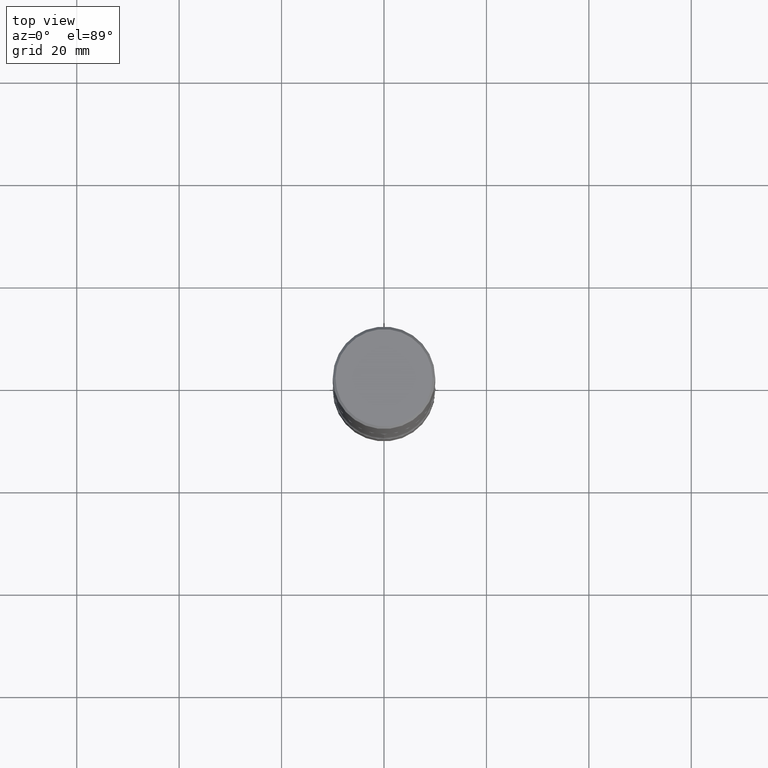
[diagram: clean part render]
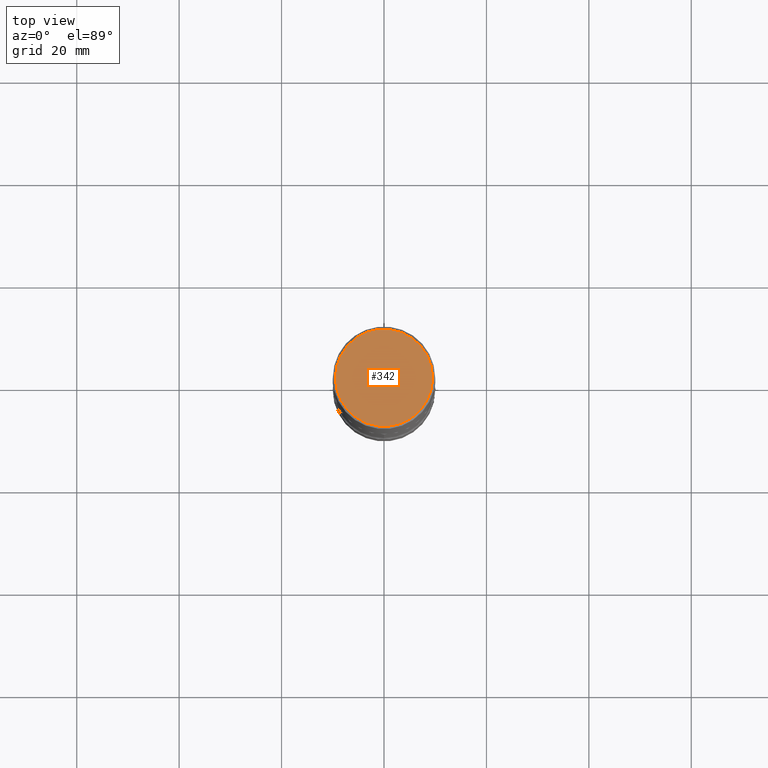
[diagram: same view with one face highlighted and labeled with its STEP entity id]
A machine part, top view. The second image highlights one B-rep face of the part: STEP entity #342.
In plain terms, the highlighted planar face has unit normal (0, -0, -1).
Its self-contained STEP definition (entity closure, byte-faithful):
#36 = CIRCLE ( 'NONE', #99, 0.3736999999999999766 ) ;
#69 = AXIS2_PLACEMENT_3D ( 'NONE', #408, #270, #352 ) ;
#74 = EDGE_LOOP ( 'NONE', ( #423, #235 ) ) ;
#92 = DIRECTION ( 'NONE',  ( -2.445468806185136597E-29, 3.491481338843145583E-15, 1.000000000000000000 ) ) ;
#95 = DIRECTION ( 'NONE',  ( -2.445468806185136597E-29, 3.491481338843145583E-15, 1.000000000000000000 ) ) ;
#99 = AXIS2_PLACEMENT_3D ( 'NONE', #176, #92, #528 ) ;
#114 = CARTESIAN_POINT ( 'NONE',  ( 0.3736999999999999766, -2.667287895133368359E-15, 8.537024980219259100E-18 ) ) ;
#118 = EDGE_CURVE ( 'NONE', #203, #505, #282, .T. ) ;
#176 = CARTESIAN_POINT ( 'NONE',  ( -2.087702828670435750E-46, 2.980686340760889474E-32, 8.537024980200807150E-18 ) ) ;
#203 = VERTEX_POINT ( 'NONE', #451 ) ;
#215 = CARTESIAN_POINT ( 'NONE',  ( -2.087702828670435750E-46, 2.980686340760889474E-32, 8.537024980200807150E-18 ) ) ;
#235 = ORIENTED_EDGE ( 'NONE', *, *, #364, .T. ) ;
#259 = FACE_OUTER_BOUND ( 'NONE', #74, .T. ) ;
#270 = DIRECTION ( 'NONE',  ( 2.438088387897960049E-29, -3.491481338843145188E-15, -1.000000000000000000 ) ) ;
#282 = CIRCLE ( 'NONE', #301, 0.3736999999999999766 ) ;
#301 = AXIS2_PLACEMENT_3D ( 'NONE', #215, #95, #523 ) ;
#342 = ADVANCED_FACE ( 'NONE', ( #259 ), #367, .F. ) ;
#352 = DIRECTION ( 'NONE',  ( -1.000000000000000000, 6.982962677686265922E-15, -4.876176775795935793E-29 ) ) ;
#364 = EDGE_CURVE ( 'NONE', #505, #203, #36, .T. ) ;
#367 = PLANE ( 'NONE',  #69 ) ;
#408 = CARTESIAN_POINT ( 'NONE',  ( 2.609533152651357409E-15, 0.3736999999999999766, -1.300498063835583011E-15 ) ) ;
#423 = ORIENTED_EDGE ( 'NONE', *, *, #118, .T. ) ;
#451 = CARTESIAN_POINT ( 'NONE',  ( -0.3736999999999999766, 2.644447966039789058E-15, 8.537024980182435319E-18 ) ) ;
#505 = VERTEX_POINT ( 'NONE', #114 ) ;
#523 = DIRECTION ( 'NONE',  ( 1.000000000000000000, -6.982962677686266711E-15, 4.876212485538975679E-29 ) ) ;
#528 = DIRECTION ( 'NONE',  ( 1.000000000000000000, -6.982962677686266711E-15, 4.876212485538975679E-29 ) ) ;